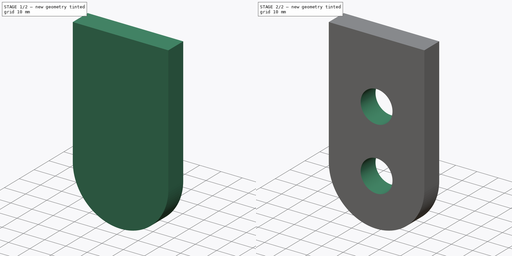
[diagram: build sequence overview — one tinted view per stage of 2, left to right]
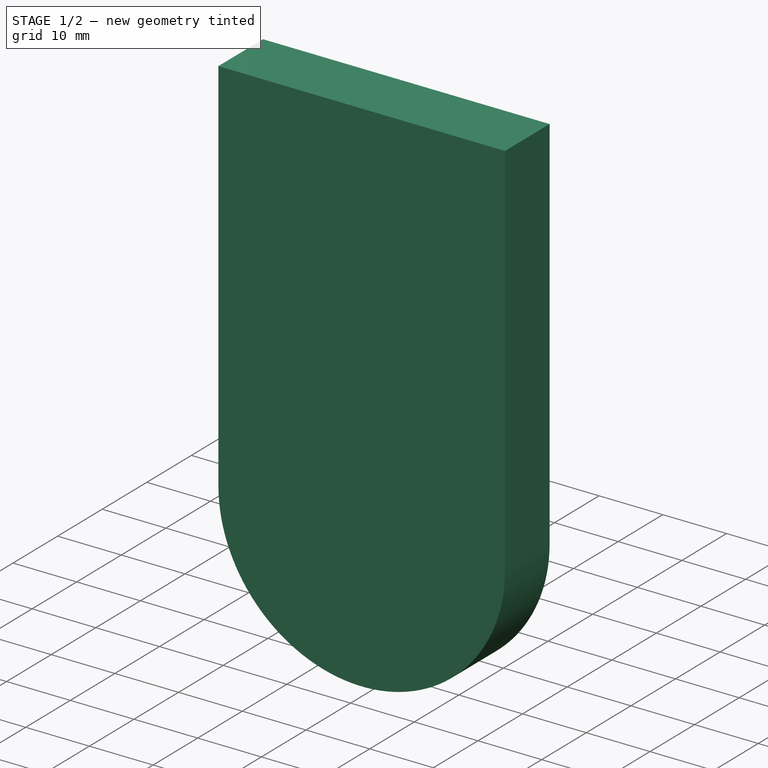
[diagram: stage 1 of 2 — iso view after this stage's code; geometry added in this stage tinted green]
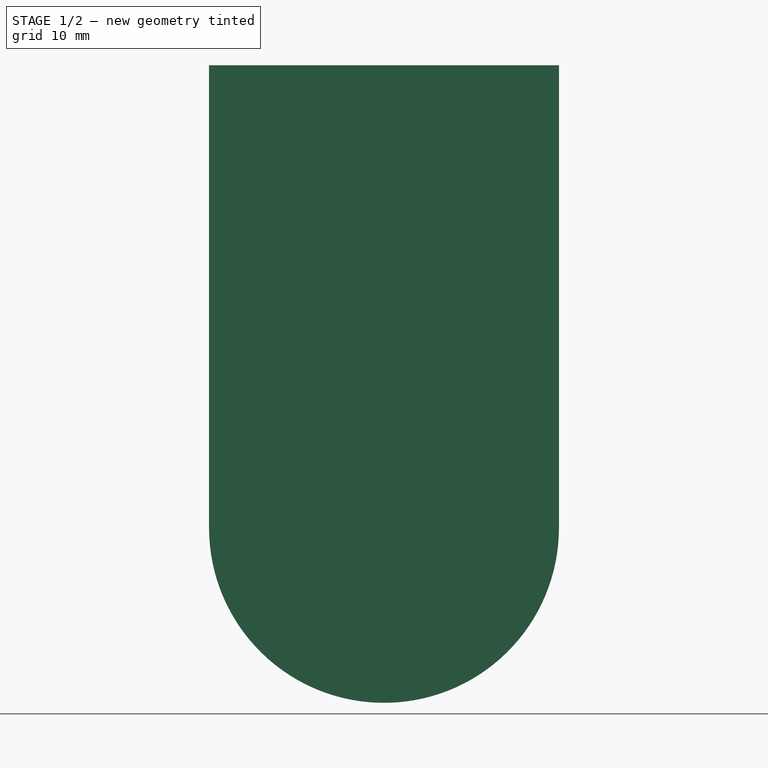
[diagram: stage 1 of 2 — front view after this stage's code; geometry added in this stage tinted green]
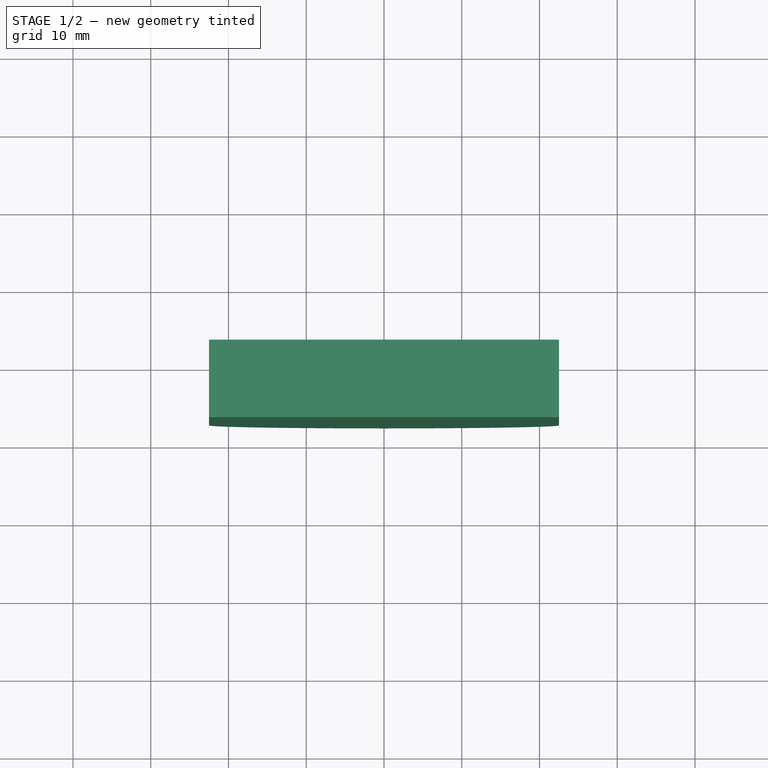
[diagram: stage 1 of 2 — top view after this stage's code; geometry added in this stage tinted green]
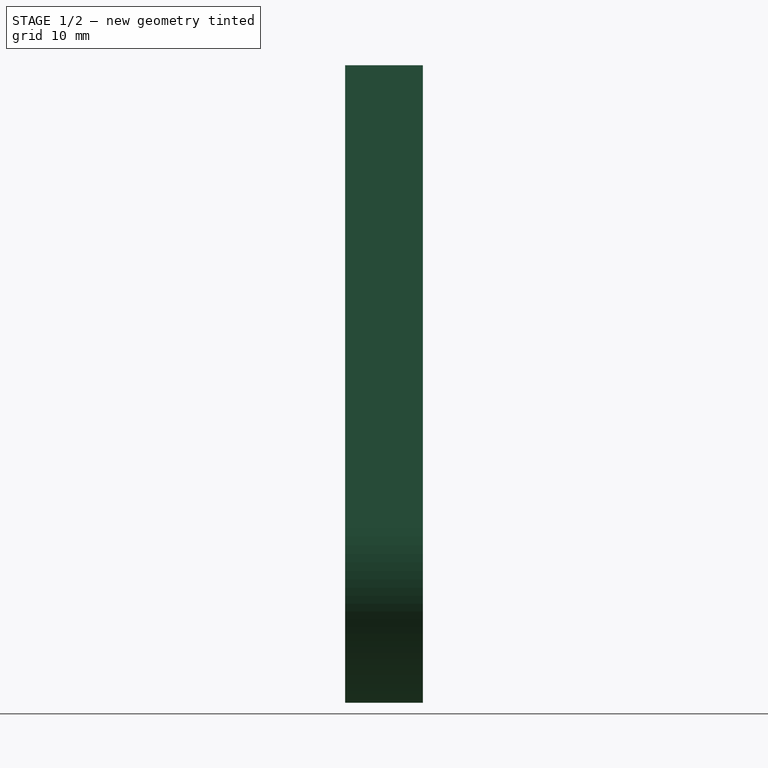
[diagram: stage 1 of 2 — right view after this stage's code; geometry added in this stage tinted green]
FCSTD DOCUMENT  (FreeCAD 0.18.4R)
Label: part10
License: All rights reserved
LicenseURL: http://en.wikipedia.org/wiki/All_rights_reserved
objects: Sketcher::SketchObject×2, PartDesign::Pad×1, PartDesign::Hole×1, PartDesign::Body×1, App::Part×1
note: 7 computed .brp shape members not serialized (recipe doc carries the construction recipe); baked Part::Feature solids carry a one-line shape summary decoded from their .brp

FEATURE [Sketcher::SketchObject] Sketch004
  MapMode = 5
  Placement = pos=(0,-12.5,0) rot=(1,0,0;1.5708rad)
  sketch-geometry (9):
    g0: LineSegment StartX=-22.5 StartY=59.5 StartZ=0 EndX=-22.5 EndY=-6.02532e-05 EndZ=0
    g1: LineSegment StartX=-22.5 StartY=59.5 StartZ=0 EndX=22.5 EndY=59.5 EndZ=0
    g2: LineSegment StartX=22.5 StartY=59.5 StartZ=0 EndX=22.5 EndY=-6.02447e-05 EndZ=0
    g3: ArcOfCircle CenterX=0 CenterY=0 CenterZ=0 NormalX=0 NormalY=0 NormalZ=1 AngleXU=0 Radius=22.5 StartAngle=3.1416 EndAngle=6.28318
    g4: GeomPoint X=-22.5 Y=-6.02532e-05 Z=0
    g5: GeomPoint X=-22.5 Y=-6.02532e-05 Z=0
    g6: GeomPoint X=-22.5 Y=-6.02532e-05 Z=0
    g7: GeomPoint X=-22.5 Y=-6.02532e-05 Z=0
    g8: GeomPoint X=-22.5 Y=-6.02532e-05 Z=0
  constraints (16):
    c: Vertical(g0)
    c: Coincident(g1,g0)
    c: Coincident(g2,g1)
    c: Symmetric(g0,g1,g-2)
    c: Coincident(g3,g-1)
    c: Coincident(g4,g3)
    c: Coincident(g5,g0)
    c: Coincident(g6,g3)
    c: Coincident(g7,g0)
    c: Coincident(g8,g3)
    c: Coincident(g0,g3)
    c: Coincident(g2,g3)
    c: Tangent(g0,g3)
    c: Tangent(g3,g2)
    c: DistanceX(g1,g1) = 45
    c: DistanceY(g3,g1) = 59.5
FEATURE [PartDesign::Pad] Pad
  Length = 10
  Length2 = 100
  Midplane = true
  Placement = pos=(0,-12.5,0) rot=(1,0,0;1.5708rad)
  Profile = -> Sketch004
  Type = 0
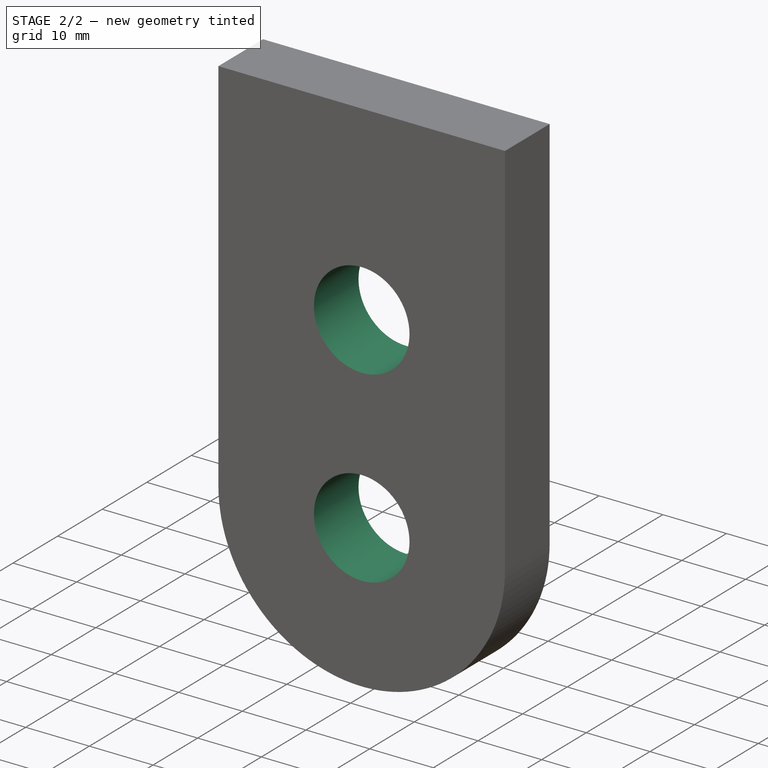
[diagram: stage 2 of 2 — iso view after this stage's code; geometry added in this stage tinted green]
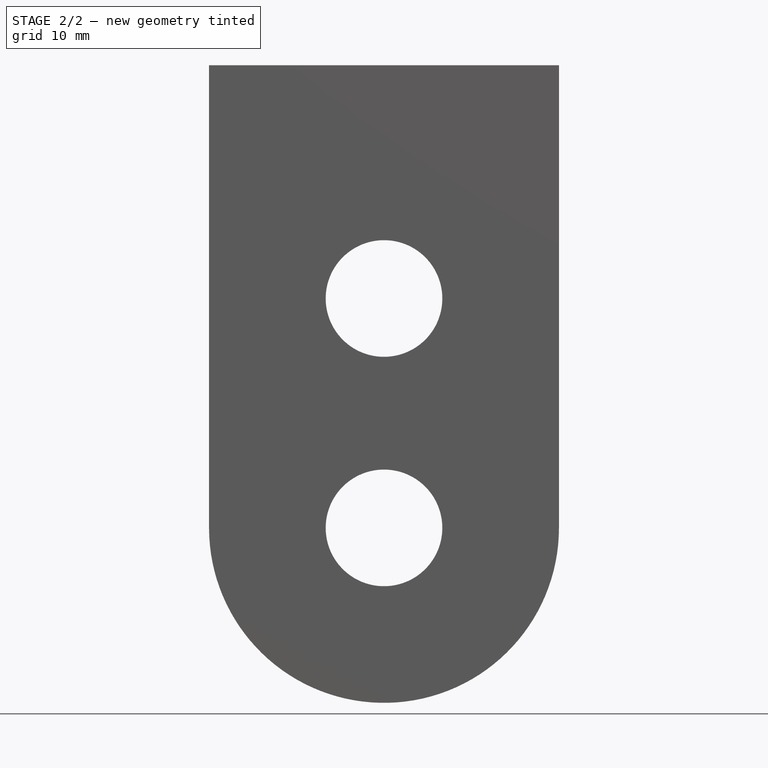
[diagram: stage 2 of 2 — front view after this stage's code; geometry added in this stage tinted green]
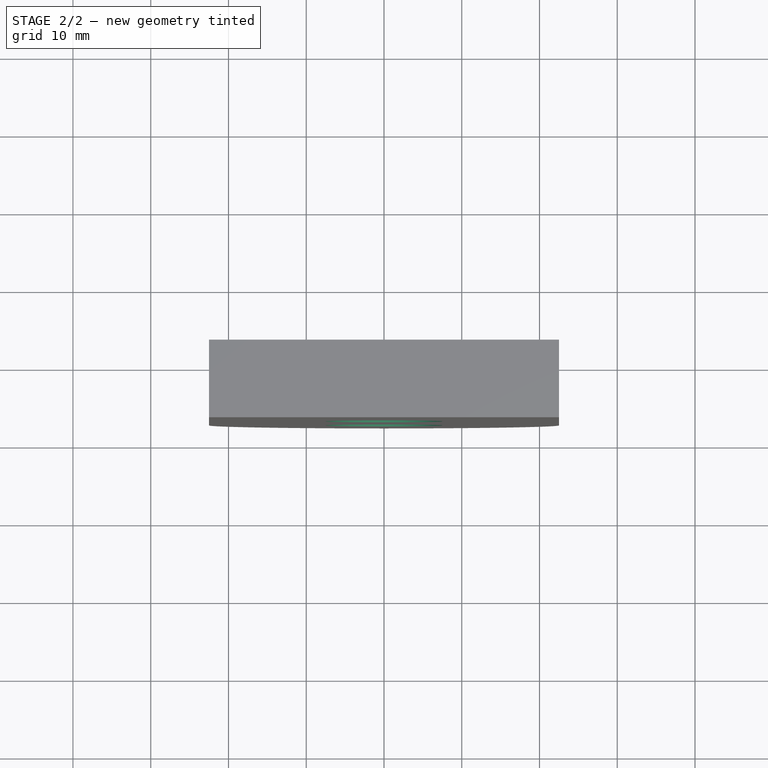
[diagram: stage 2 of 2 — top view after this stage's code; geometry added in this stage tinted green]
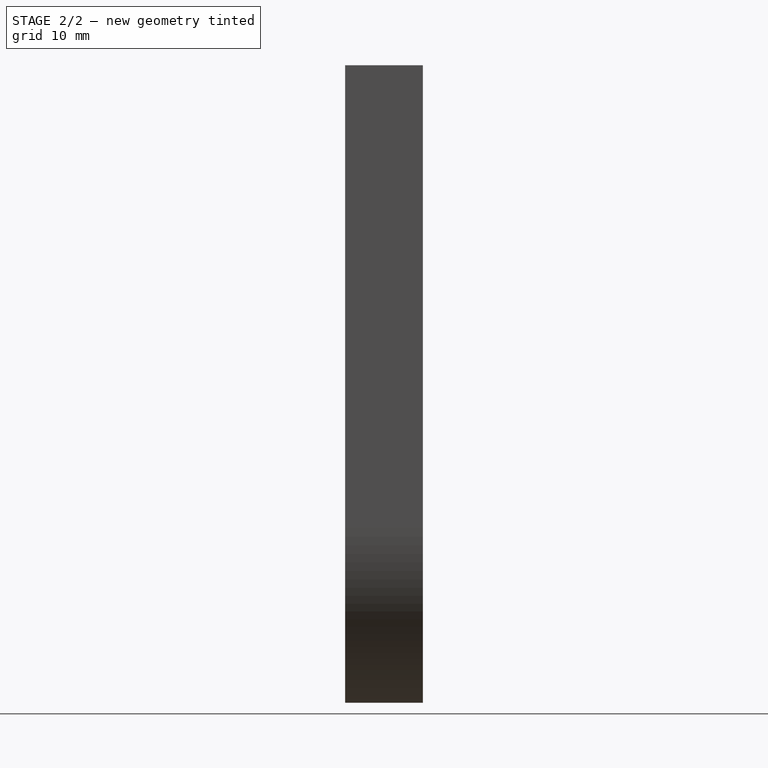
[diagram: stage 2 of 2 — right view after this stage's code; geometry added in this stage tinted green]
FEATURE [Sketcher::SketchObject] Sketch
  MapMode = 5
  Placement = pos=(0,-17.5,1.6e-15) rot=(1,0,0;1.5708rad)
  Support = -> [Pad]
  sketch-geometry (2):
    g0: Circle CenterX=0 CenterY=0 CenterZ=0 NormalX=0 NormalY=0 NormalZ=1 AngleXU=0 Radius=4.41768
    g1: Circle CenterX=0 CenterY=29.5 CenterZ=0 NormalX=0 NormalY=0 NormalZ=1 AngleXU=0 Radius=6.95113
  constraints (3):
    c: Coincident(g-1,g0)
    c: PointOnObject(g1,g-2)
    c: DistanceY(g1) = 29.5
FEATURE [PartDesign::Hole] Hole
  BaseFeature = -> Pad
  Depth = 25
  DepthType = 1
  Diameter = 15
  DrillPoint = 0
  DrillPointAngle = 118
  HoleCutCountersinkAngle = 90
  HoleCutDepth = 0
  HoleCutDiameter = 0
  HoleCutType = 0
  ModelActualThread = false
  Placement = pos=(0,-12.5,0) rot=(1,0,0;1.5708rad)
  Profile = -> Sketch
  Tapered = false
  TaperedAngle = 90
  ThreadAngle = 0
  ThreadClass = 0
  ThreadCutOffInner = 0
  ThreadCutOffOuter = 0
  ThreadDirection = 0
  ThreadFit = 0
  ThreadPitch = 0
  ThreadSize = 0
  ThreadType = 0
  Threaded = false
FEATURE [PartDesign::Body] Body001  label="Body"
  Group = -> [Sketch004,Pad,Sketch,Hole]
  Origin = -> Origin003
  Tip = -> Hole
FEATURE [App::Part] Part001  label="part10"
  Group = -> [Body001]
  Origin = -> Origin001
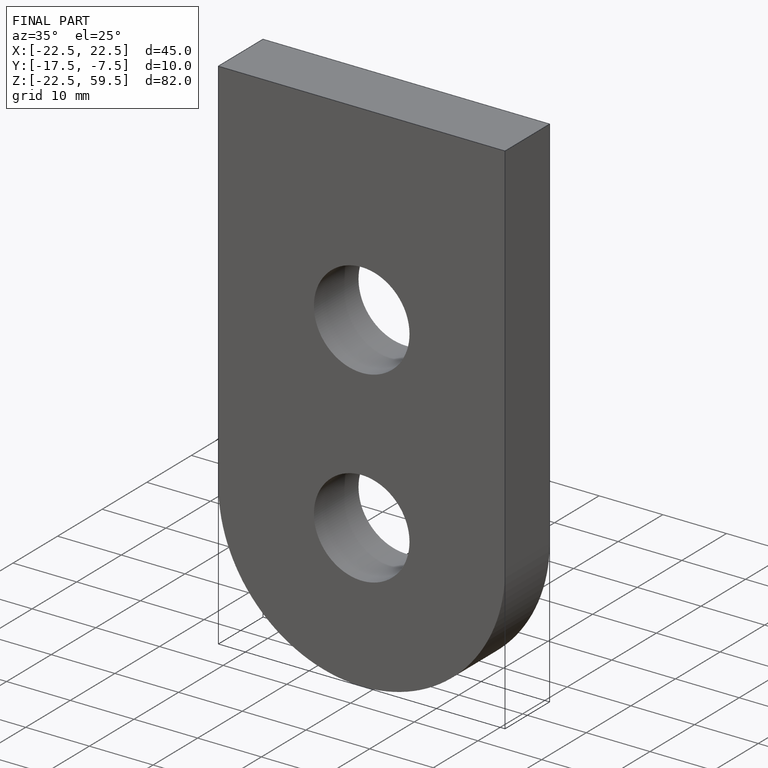
[diagram: finished part — iso view with bounding-box wireframe]
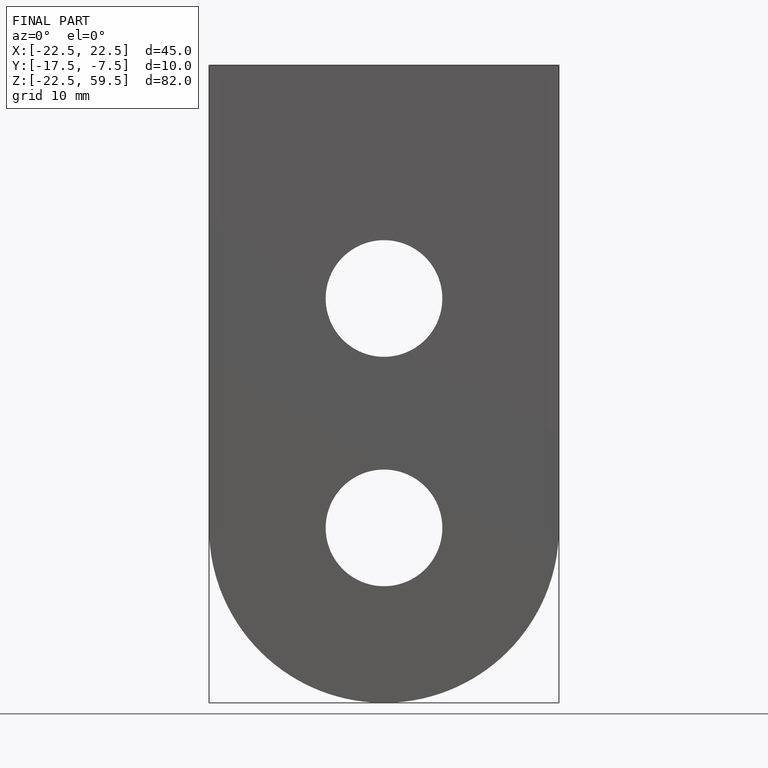
[diagram: finished part — front view with bounding-box wireframe]
